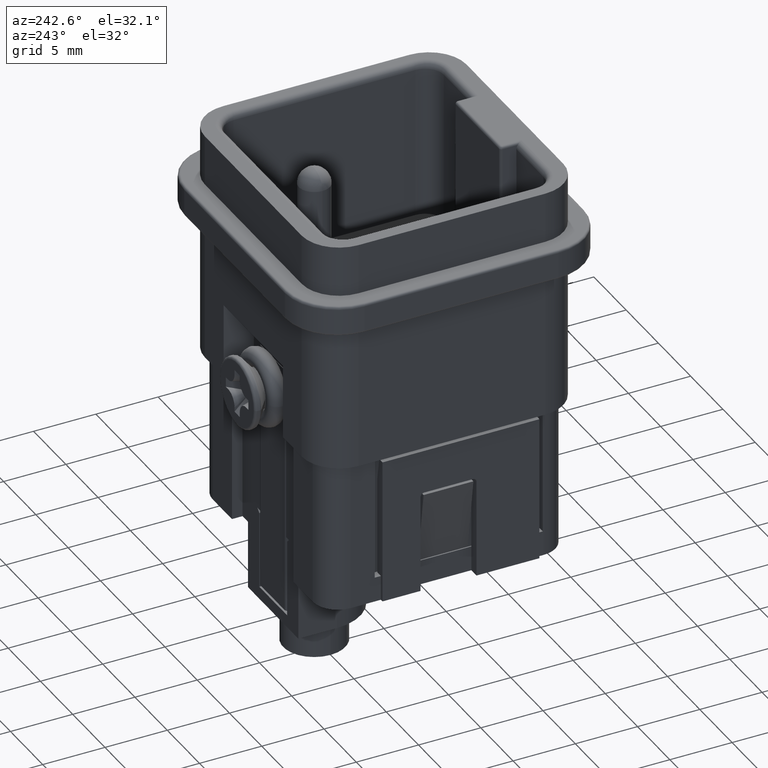
[diagram: clean part render]
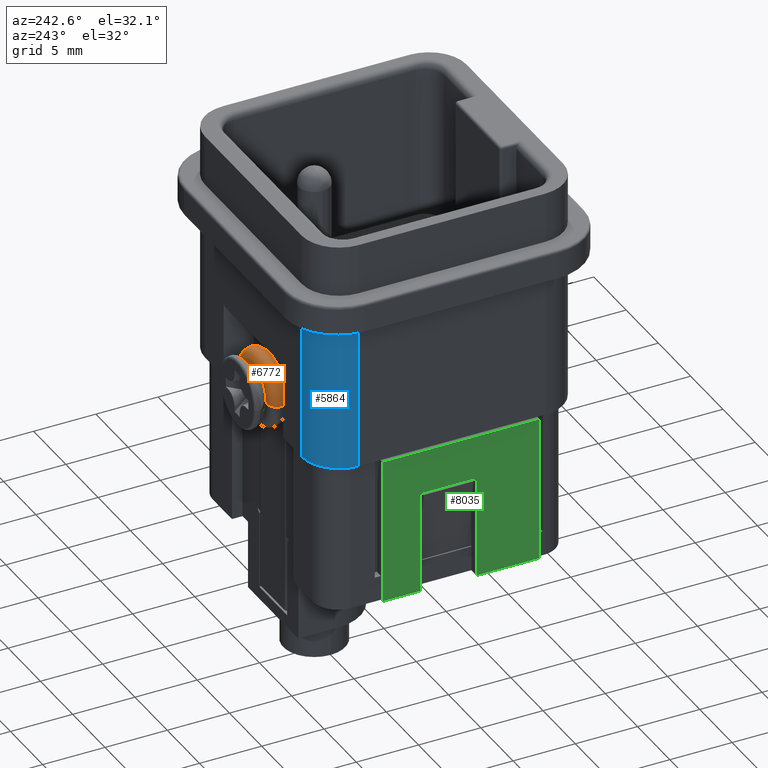
[diagram: same view with three faces highlighted in distinct colors, each labeled with its STEP entity id]
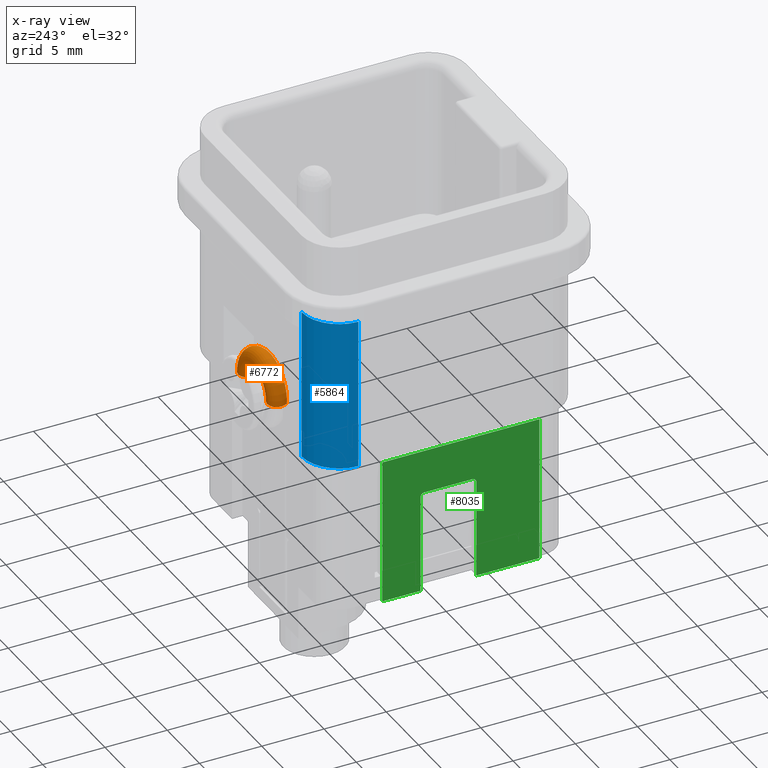
[diagram: x-ray of the same camera — body ghosted, the three highlighted faces saturated]
A machine part, auxiliary view with three faces highlighted in distinct colors.
The next image is the same camera in x-ray (body ghosted, the three faces saturated) — at least one of them is partly hidden behind the body in this view.
Their STEP definitions:

[orange] entity #6772 — the highlighted toroidal blend (fillet) surface has major radius 2.25 mm and minor (blend) radius 0.75 mm.
#1947=CARTESIAN_POINT('',(-2.250084244088E0,9.795776605353E0,1.169934339754E1));
#1948=DIRECTION('',(2.894756675E-4,0.E0,-9.999999581019E-1));
#1949=DIRECTION('',(2.214737048736E-4,-9.999999754747E-1,6.411125173095E-8));
#1950=AXIS2_PLACEMENT_3D('',#1947,#1948,#1949);
#1952=CARTESIAN_POINT('',(-1.547478388515E0,1.005822949748E1,1.169977489427E1));
#1953=CARTESIAN_POINT('',(-1.547478388515E0,1.005819065629E1,1.175022589988E1));
#1954=CARTESIAN_POINT('',(-1.542551207381E0,1.005818699263E1,1.185171827060E1));
#1955=CARTESIAN_POINT('',(-1.520075679993E0,1.005819380879E1,1.200310257552E1));
#1956=CARTESIAN_POINT('',(-1.482761366270E0,1.005820006607E1,1.215152305630E1));
#1957=CARTESIAN_POINT('',(-1.431339531177E0,1.005820906939E1,1.229463822817E1));
#1958=CARTESIAN_POINT('',(-1.366523877035E0,1.005821978443E1,1.243142818299E1));
#1959=CARTESIAN_POINT('',(-1.287991163209E0,1.005823250856E1,1.256229876305E1));
#1960=CARTESIAN_POINT('',(-1.196855126940E0,1.005824699029E1,1.268486734852E1));
#1961=CARTESIAN_POINT('',(-1.094617781010E0,1.005826301034E1,1.279734180716E1));
#1962=CARTESIAN_POINT('',(-9.822690381326E-1,1.005828041146E1,
1.289895070378E1));
#1963=CARTESIAN_POINT('',(-8.602487411196E-1,1.005829912683E1,
1.298933679535E1));
#1964=CARTESIAN_POINT('',(-7.293788100623E-1,1.005831902735E1,
1.306763199267E1));
#1965=CARTESIAN_POINT('',(-5.920349876496E-1,1.005833975171E1,
1.313242903262E1));
#1966=CARTESIAN_POINT('',(-4.491272430392E-1,1.005836116376E1,
1.318345153873E1));
#1967=CARTESIAN_POINT('',(-3.020764806768E-1,1.005838305084E1,
1.322023668595E1));
#1968=CARTESIAN_POINT('',(-1.516160589256E-1,1.005840530304E1,
1.324253103617E1));
#1969=CARTESIAN_POINT('',(8.336196846363E-6,1.005842758770E1,1.324995245559E1));
#1970=CARTESIAN_POINT('',(1.516205349535E-1,1.005844973279E1,1.324252966892E1));
#1971=CARTESIAN_POINT('',(3.020508651229E-1,1.005847156679E1,1.322024127387E1));
#1972=CARTESIAN_POINT('',(4.491114360668E-1,1.005849277271E1,1.318345715807E1));
#1973=CARTESIAN_POINT('',(5.920359292706E-1,1.005851324078E1,1.313242858156E1));
#1974=CARTESIAN_POINT('',(7.293642051366E-1,1.005853276188E1,1.306763919074E1));
#1975=CARTESIAN_POINT('',(8.602194465571E-1,1.005855120986E1,1.298935473841E1));
#1976=CARTESIAN_POINT('',(9.822091889210E-1,1.005856824935E1,1.289899956824E1));
#1977=CARTESIAN_POINT('',(1.094583345921E0,1.005858377188E1,1.279737671906E1));
#1978=CARTESIAN_POINT('',(1.196809829340E0,1.005859772745E1,1.268492113861E1));
#1979=CARTESIAN_POINT('',(1.287941286299E0,1.005860989627E1,1.256237137893E1));
#1980=CARTESIAN_POINT('',(1.366460163361E0,1.005862040201E1,1.243154471343E1));
#1981=CARTESIAN_POINT('',(1.431283995942E0,1.005862788004E1,1.229477229045E1));
#1982=CARTESIAN_POINT('',(1.482715762760E0,1.005863695334E1,1.215166818734E1));
#1983=CARTESIAN_POINT('',(1.520044621335E0,1.005863042756E1,1.200327155911E1));
#1984=CARTESIAN_POINT('',(1.542531768345E0,1.005867203320E1,1.185184618513E1));
#1985=CARTESIAN_POINT('',(1.547478419564E0,1.005857306960E1,1.175048530377E1));
#1986=CARTESIAN_POINT('',(1.547478419564E0,1.005858153260E1,1.169994886862E1));
#1988=CARTESIAN_POINT('',(2.249914794267E0,9.795776605353E0,1.169985371564E1));
#1989=DIRECTION('',(-6.266757964197E-5,0.E0,-9.999999980364E-1));
#1990=DIRECTION('',(-9.365701276860E-1,3.504802312276E-1,5.869258318256E-5));
#1991=AXIS2_PLACEMENT_3D('',#1988,#1989,#1990);
#1993=CARTESIAN_POINT('',(2.249914793989E0,9.795776605353E0,1.169984935299E1));
#1994=DIRECTION('',(-6.460653783072E-5,0.E0,-9.999999979130E-1));
#1995=DIRECTION('',(-2.214852722149E-4,9.999999754721E-1,1.430939628112E-8));
#1996=AXIS2_PLACEMENT_3D('',#1993,#1994,#1995);
#1998=CARTESIAN_POINT('',(2.249914793989E0,9.795776605353E0,1.169984935299E1));
#1999=DIRECTION('',(-6.460653783072E-5,0.E0,-9.999999979130E-1));
#2000=DIRECTION('',(-2.214737136907E-4,-9.999999754747E-1,1.430865022057E-8));
#2001=AXIS2_PLACEMENT_3D('',#1998,#1999,#2000);
#2003=CARTESIAN_POINT('',(1.547478419564E0,9.532971678284E0,1.169994886835E1));
#2004=CARTESIAN_POINT('',(1.547478419564E0,9.532980141331E0,1.175048530350E1));
#2005=CARTESIAN_POINT('',(1.542531768345E0,9.532881177401E0,1.185184618526E1));
#2006=CARTESIAN_POINT('',(1.520044621335E0,9.532922783174E0,1.200327155907E1));
#2007=CARTESIAN_POINT('',(1.482715762760E0,9.532916257362E0,1.215166818735E1));
#2008=CARTESIAN_POINT('',(1.431283995942E0,9.532925330671E0,1.229477229045E1));
#2009=CARTESIAN_POINT('',(1.366460163361E0,9.532932808699E0,1.243154471343E1));
#2010=CARTESIAN_POINT('',(1.287941286299E0,9.532943314440E0,1.256237137893E1));
#2011=CARTESIAN_POINT('',(1.196809829340E0,9.532955483255E0,1.268492113861E1));
#2012=CARTESIAN_POINT('',(1.094583345921E0,9.532969438824E0,1.279737671906E1));
#2013=CARTESIAN_POINT('',(9.822091889210E-1,9.532984961352E0,1.289899956824E1));
#2014=CARTESIAN_POINT('',(8.602194465571E-1,9.533002000849E0,1.298935473841E1));
#2015=CARTESIAN_POINT('',(7.293642051366E-1,9.533020448824E0,1.306763919074E1));
#2016=CARTESIAN_POINT('',(5.920359292706E-1,9.533039969930E0,1.313242858156E1));
#2017=CARTESIAN_POINT('',(4.491114360668E-1,9.533060437992E0,1.318345715807E1));
#2018=CARTESIAN_POINT('',(3.020508651229E-1,9.533081643918E0,1.322024127387E1));
#2019=CARTESIAN_POINT('',(1.516205349535E-1,9.533103477918E0,1.324252966892E1));
#2020=CARTESIAN_POINT('',(8.336196843886E-6,9.533125623004E0,1.324995245559E1));
#2021=CARTESIAN_POINT('',(-1.516160589256E-1,9.533147907671E0,
1.324253103617E1));
#2022=CARTESIAN_POINT('',(-3.020764806768E-1,9.533170159864E0,
1.322023668595E1));
#2023=CARTESIAN_POINT('',(-4.491272430392E-1,9.533192046946E0,
1.318345153873E1));
#2024=CARTESIAN_POINT('',(-5.920349876496E-1,9.533213458994E0,
1.313242903262E1));
#2025=CARTESIAN_POINT('',(-7.293788100623E-1,9.533234183354E0,
1.306763199267E1));
#2026=CARTESIAN_POINT('',(-8.602487411196E-1,9.533254083878E0,
1.298933679535E1));
#2027=CARTESIAN_POINT('',(-9.822690381326E-1,9.533272799248E0,
1.289895070378E1));
#2028=CARTESIAN_POINT('',(-1.094617781010E0,9.533290200363E0,1.279734180716E1));
#2029=CARTESIAN_POINT('',(-1.196855126940E0,9.533306220415E0,1.268486734852E1));
#2030=CARTESIAN_POINT('',(-1.287991163209E0,9.533320702142E0,1.256229876305E1));
#2031=CARTESIAN_POINT('',(-1.366523877035E0,9.533333426273E0,1.243142818299E1));
#2032=CARTESIAN_POINT('',(-1.431339531177E0,9.533344141320E0,1.229463822818E1));
#2033=CARTESIAN_POINT('',(-1.482761366270E0,9.533353144622E0,1.215152305628E1));
#2034=CARTESIAN_POINT('',(-1.520075679993E0,9.533359401956E0,1.200310257561E1));
#2035=CARTESIAN_POINT('',(-1.542551207381E0,9.533366217908E0,1.185171827025E1));
#2036=CARTESIAN_POINT('',(-1.547478388515E0,9.533362554773E0,1.175022590062E1));
#2037=CARTESIAN_POINT('',(-1.547478388515E0,9.533323713714E0,1.169977489501E1));
#2039=CARTESIAN_POINT('',(-1.547478388515E0,1.005822949748E1,1.169977489427E1));
#2072=CARTESIAN_POINT('',(1.547478419564E0,1.005858153260E1,1.169994886862E1));
#2074=CARTESIAN_POINT('',(-2.250032139668E0,9.795776605842E0,1.169932326998E1));
#2075=DIRECTION('',(-3.224234633220E-4,3.227963676043E-10,9.999999480216E-1));
#2076=DIRECTION('',(9.367500876444E-1,3.499988315351E-1,3.020301102470E-4));
#2077=AXIS2_PLACEMENT_3D('',#2074,#2075,#2076);
#2079=CARTESIAN_POINT('',(-2.250032145045E0,9.795776605842E0,1.169934014482E1));
#2080=DIRECTION('',(-3.149234864445E-4,3.227958449379E-10,9.999999504116E-1));
#2081=DIRECTION('',(-4.106760508872E-5,-9.999999991567E-1,-1.261035850948E-8));
#2082=AXIS2_PLACEMENT_3D('',#2079,#2080,#2081);
#2084=CARTESIAN_POINT('',(-1.547478388515E0,9.533323713714E0,1.169977489501E1));
#2117=CARTESIAN_POINT('',(1.547478419564E0,9.532971678284E0,1.169994886835E1));
#4108=VERTEX_POINT('',#2084);
#4109=VERTEX_POINT('',#2117);
#4110=VERTEX_POINT('',#2039);
#4111=VERTEX_POINT('',#2072);
#4112=CARTESIAN_POINT('',(2.249748678232E0,1.054578596226E1,1.169985372605E1));
#4113=VERTEX_POINT('',#4112);
#4114=CARTESIAN_POINT('',(2.249748686628E0,9.045767248440E0,1.169984936372E1));
#4115=VERTEX_POINT('',#4114);
#4116=CARTESIAN_POINT('',(-2.250062931046E0,1.054576723042E1,1.169932325981E1));
#4117=VERTEX_POINT('',#4116);
#4118=CARTESIAN_POINT('',(-2.250062945364E0,9.045785981266E0,1.169934013536E1));
#4119=VERTEX_POINT('',#4118);
#6750=CARTESIAN_POINT('',(-8.476983676408E-5,9.795776605353E0,
1.169999471767E1));
#6751=DIRECTION('',(0.E0,-1.E0,0.E0));
#6752=DIRECTION('',(-9.999999581019E-1,0.E0,-2.894756675002E-4));
#6753=AXIS2_PLACEMENT_3D('',#6750,#6751,#6752);
#6754=TOROIDAL_SURFACE('',#6753,2.249999568522E0,7.500093753072E-1);
#6756=ORIENTED_EDGE('',*,*,#6755,.T.);
#6758=ORIENTED_EDGE('',*,*,#6757,.F.);
#6760=ORIENTED_EDGE('',*,*,#6759,.T.);
#6762=ORIENTED_EDGE('',*,*,#6761,.T.);
#6764=ORIENTED_EDGE('',*,*,#6763,.T.);
#6766=ORIENTED_EDGE('',*,*,#6765,.T.);
#6767=ORIENTED_EDGE('',*,*,#6744,.T.);
#6769=ORIENTED_EDGE('',*,*,#6768,.F.);
#6770=EDGE_LOOP('',(#6756,#6758,#6760,#6762,#6764,#6766,#6767,#6769));
#6771=FACE_OUTER_BOUND('',#6770,.F.);
#6772=ADVANCED_FACE('',(#6771),#6754,.T.);
#1951=CIRCLE('',#1950,7.500093753072E-1);
#1987=B_SPLINE_CURVE_WITH_KNOTS('',3,(#1952,#1953,#1954,#1955,#1956,#1957,#1958,
#1959,#1960,#1961,#1962,#1963,#1964,#1965,#1966,#1967,#1968,#1969,#1970,#1971,
#1972,#1973,#1974,#1975,#1976,#1977,#1978,#1979,#1980,#1981,#1982,#1983,#1984,
#1985,#1986),.UNSPECIFIED.,.F.,.F.,(4,1,1,1,1,1,1,1,1,1,1,1,1,1,1,1,1,1,1,1,1,1,
1,1,1,1,1,1,1,1,1,1,4),(0.E0,3.125E-2,6.25E-2,9.375E-2,1.25E-1,1.5625E-1,
1.875E-1,2.1875E-1,2.5E-1,2.8125E-1,3.125E-1,3.4375E-1,3.75E-1,4.0625E-1,
4.375E-1,4.6875E-1,5.E-1,5.3125E-1,5.625E-1,5.9375E-1,6.25E-1,6.5625E-1,
6.875E-1,7.1875E-1,7.5E-1,7.8125E-1,8.125E-1,8.4375E-1,8.75E-1,9.0625E-1,
9.375E-1,9.6875E-1,1.E0),.UNSPECIFIED.);
#1992=CIRCLE('',#1991,7.500093753072E-1);
#1997=CIRCLE('',#1996,7.500093753072E-1);
#2002=CIRCLE('',#2001,7.500093753072E-1);
#2038=B_SPLINE_CURVE_WITH_KNOTS('',3,(#2003,#2004,#2005,#2006,#2007,#2008,#2009,
#2010,#2011,#2012,#2013,#2014,#2015,#2016,#2017,#2018,#2019,#2020,#2021,#2022,
#2023,#2024,#2025,#2026,#2027,#2028,#2029,#2030,#2031,#2032,#2033,#2034,#2035,
#2036,#2037),.UNSPECIFIED.,.F.,.F.,(4,1,1,1,1,1,1,1,1,1,1,1,1,1,1,1,1,1,1,1,1,1,
1,1,1,1,1,1,1,1,1,1,4),(0.E0,3.125E-2,6.25E-2,9.375E-2,1.25E-1,1.5625E-1,
1.875E-1,2.1875E-1,2.5E-1,2.8125E-1,3.125E-1,3.4375E-1,3.75E-1,4.0625E-1,
4.375E-1,4.6875E-1,5.E-1,5.3125E-1,5.625E-1,5.9375E-1,6.25E-1,6.5625E-1,
6.875E-1,7.1875E-1,7.5E-1,7.8125E-1,8.125E-1,8.4375E-1,8.75E-1,9.0625E-1,
9.375E-1,9.6875E-1,1.E0),.UNSPECIFIED.);
#2078=CIRCLE('',#2077,7.499906252085E-1);
#2083=CIRCLE('',#2082,7.499906252085E-1);
#6744=EDGE_CURVE('',#4109,#4108,#2038,.T.);
#6755=EDGE_CURVE('',#4119,#4117,#1951,.T.);
#6757=EDGE_CURVE('',#4110,#4117,#2078,.T.);
#6759=EDGE_CURVE('',#4110,#4111,#1987,.T.);
#6761=EDGE_CURVE('',#4111,#4113,#1992,.T.);
#6763=EDGE_CURVE('',#4113,#4115,#1997,.T.);
#6765=EDGE_CURVE('',#4115,#4109,#2002,.T.);
#6768=EDGE_CURVE('',#4119,#4108,#2083,.T.);

[blue] entity #5864 — the highlighted cylindrical surface (partial cylindrical patch) has radius 3 mm, axis along (0, 0, -1).
#107=CARTESIAN_POINT('',(-7.5E0,7.5E0,1.02E1));
#108=DIRECTION('',(0.E0,0.E0,1.E0));
#109=DIRECTION('',(0.E0,1.E0,0.E0));
#110=AXIS2_PLACEMENT_3D('',#107,#108,#109);
#1202=CARTESIAN_POINT('',(-7.5E0,7.5E0,2.235E1));
#1203=DIRECTION('',(0.E0,0.E0,-1.E0));
#1204=DIRECTION('',(-1.E0,0.E0,0.E0));
#1205=AXIS2_PLACEMENT_3D('',#1202,#1203,#1204);
#1207=DIRECTION('',(0.E0,0.E0,-1.E0));
#1208=VECTOR('',#1207,1.215E1);
#1209=CARTESIAN_POINT('',(-1.05E1,7.5E0,2.235E1));
#1210=LINE('',#1209,#1208);
#1211=DIRECTION('',(0.E0,0.E0,1.E0));
#1212=VECTOR('',#1211,1.215E1);
#1213=CARTESIAN_POINT('',(-7.5E0,1.05E1,1.02E1));
#1214=LINE('',#1213,#1212);
#3409=CARTESIAN_POINT('',(-7.5E0,1.05E1,1.02E1));
#3411=VERTEX_POINT('',#3409);
#3413=CARTESIAN_POINT('',(-1.05E1,7.5E0,1.02E1));
#3414=VERTEX_POINT('',#3413);
#4228=CARTESIAN_POINT('',(-7.5E0,1.05E1,2.235E1));
#4230=VERTEX_POINT('',#4228);
#4247=CARTESIAN_POINT('',(-1.05E1,7.5E0,2.235E1));
#4248=VERTEX_POINT('',#4247);
#5853=CARTESIAN_POINT('',(-7.5E0,7.5E0,2.88E1));
#5854=DIRECTION('',(0.E0,0.E0,-1.E0));
#5855=DIRECTION('',(1.E0,0.E0,0.E0));
#5856=AXIS2_PLACEMENT_3D('',#5853,#5854,#5855);
#5857=CYLINDRICAL_SURFACE('',#5856,3.E0);
#5858=ORIENTED_EDGE('',*,*,#4506,.F.);
#5859=ORIENTED_EDGE('',*,*,#5848,.T.);
#5860=ORIENTED_EDGE('',*,*,#4385,.F.);
#5861=ORIENTED_EDGE('',*,*,#4455,.T.);
#5862=EDGE_LOOP('',(#5858,#5859,#5860,#5861));
#5863=FACE_OUTER_BOUND('',#5862,.F.);
#5864=ADVANCED_FACE('',(#5863),#5857,.T.);
#111=CIRCLE('',#110,3.E0);
#1206=CIRCLE('',#1205,3.E0);
#4385=EDGE_CURVE('',#3411,#3414,#111,.T.);
#4455=EDGE_CURVE('',#3411,#4230,#1214,.T.);
#4506=EDGE_CURVE('',#4248,#4230,#1206,.T.);
#5848=EDGE_CURVE('',#4248,#3414,#1210,.T.);

[green] entity #8035 — the highlighted planar face has unit normal (1, 0, 0).
#2979=DIRECTION('',(0.E0,0.E0,-1.E0));
#2980=VECTOR('',#2979,1.17E1);
#2981=CARTESIAN_POINT('',(-1.E1,5.3E0,9.6E0));
#2982=LINE('',#2981,#2980);
#3055=DIRECTION('',(0.E0,1.E0,0.E0));
#3056=VECTOR('',#3055,3.9E0);
#3057=CARTESIAN_POINT('',(-1.E1,-1.95E0,6.1E0));
#3058=LINE('',#3057,#3056);
#3059=CARTESIAN_POINT('',(-1.E1,1.95E0,5.8E0));
#3060=DIRECTION('',(-1.E0,0.E0,0.E0));
#3061=DIRECTION('',(0.E0,0.E0,1.E0));
#3062=AXIS2_PLACEMENT_3D('',#3059,#3060,#3061);
#3064=DIRECTION('',(0.E0,0.E0,-1.E0));
#3065=VECTOR('',#3064,7.9E0);
#3066=CARTESIAN_POINT('',(-1.E1,2.25E0,5.8E0));
#3067=LINE('',#3066,#3065);
#3068=DIRECTION('',(0.E0,1.E0,0.E0));
#3069=VECTOR('',#3068,3.05E0);
#3070=CARTESIAN_POINT('',(-1.E1,2.25E0,-2.1E0));
#3071=LINE('',#3070,#3069);
#3072=DIRECTION('',(0.E0,-1.E0,0.E0));
#3073=VECTOR('',#3072,1.26E1);
#3074=CARTESIAN_POINT('',(-1.E1,5.3E0,9.6E0));
#3075=LINE('',#3074,#3073);
#3076=DIRECTION('',(0.E0,0.E0,-1.E0));
#3077=VECTOR('',#3076,1.17E1);
#3078=CARTESIAN_POINT('',(-1.E1,-7.3E0,9.6E0));
#3079=LINE('',#3078,#3077);
#3080=DIRECTION('',(0.E0,1.E0,0.E0));
#3081=VECTOR('',#3080,5.05E0);
#3082=CARTESIAN_POINT('',(-1.E1,-7.3E0,-2.1E0));
#3083=LINE('',#3082,#3081);
#3084=DIRECTION('',(0.E0,0.E0,1.E0));
#3085=VECTOR('',#3084,7.9E0);
#3086=CARTESIAN_POINT('',(-1.E1,-2.25E0,-2.1E0));
#3087=LINE('',#3086,#3085);
#3088=CARTESIAN_POINT('',(-1.E1,-1.95E0,5.8E0));
#3089=DIRECTION('',(-1.E0,0.E0,0.E0));
#3090=DIRECTION('',(0.E0,-1.E0,0.E0));
#3091=AXIS2_PLACEMENT_3D('',#3088,#3089,#3090);
#3672=CARTESIAN_POINT('',(-1.E1,5.3E0,-2.1E0));
#3673=VERTEX_POINT('',#3672);
#3674=CARTESIAN_POINT('',(-1.E1,2.25E0,-2.1E0));
#3675=VERTEX_POINT('',#3674);
#3680=CARTESIAN_POINT('',(-1.E1,-2.25E0,-2.1E0));
#3681=VERTEX_POINT('',#3680);
#3682=CARTESIAN_POINT('',(-1.E1,-7.3E0,-2.1E0));
#3683=VERTEX_POINT('',#3682);
#3844=CARTESIAN_POINT('',(-1.E1,5.3E0,9.6E0));
#3845=VERTEX_POINT('',#3844);
#3854=CARTESIAN_POINT('',(-1.E1,-7.3E0,9.6E0));
#3855=VERTEX_POINT('',#3854);
#3864=CARTESIAN_POINT('',(-1.E1,2.25E0,5.8E0));
#3865=VERTEX_POINT('',#3864);
#3866=CARTESIAN_POINT('',(-1.E1,-2.25E0,5.8E0));
#3867=VERTEX_POINT('',#3866);
#3868=CARTESIAN_POINT('',(-1.E1,-1.95E0,6.1E0));
#3869=CARTESIAN_POINT('',(-1.E1,1.95E0,6.1E0));
#3870=VERTEX_POINT('',#3868);
#3871=VERTEX_POINT('',#3869);
#8014=CARTESIAN_POINT('',(-1.E1,5.3E0,9.6E0));
#8015=DIRECTION('',(1.E0,0.E0,0.E0));
#8016=DIRECTION('',(0.E0,1.E0,0.E0));
#8017=AXIS2_PLACEMENT_3D('',#8014,#8015,#8016);
#8018=PLANE('',#8017);
#8020=ORIENTED_EDGE('',*,*,#8019,.T.);
#8022=ORIENTED_EDGE('',*,*,#8021,.T.);
#8023=ORIENTED_EDGE('',*,*,#7979,.T.);
#8024=ORIENTED_EDGE('',*,*,#6418,.T.);
#8025=ORIENTED_EDGE('',*,*,#7899,.F.);
#8027=ORIENTED_EDGE('',*,*,#8026,.T.);
#8028=ORIENTED_EDGE('',*,*,#7936,.T.);
#8029=ORIENTED_EDGE('',*,*,#6426,.T.);
#8030=ORIENTED_EDGE('',*,*,#8004,.T.);
#8032=ORIENTED_EDGE('',*,*,#8031,.T.);
#8033=EDGE_LOOP('',(#8020,#8022,#8023,#8024,#8025,#8027,#8028,#8029,#8030,
#8032));
#8034=FACE_OUTER_BOUND('',#8033,.F.);
#8035=ADVANCED_FACE('',(#8034),#8018,.F.);
#3063=CIRCLE('',#3062,3.E-1);
#3092=CIRCLE('',#3091,3.E-1);
#6418=EDGE_CURVE('',#3675,#3673,#3071,.T.);
#6426=EDGE_CURVE('',#3683,#3681,#3083,.T.);
#7899=EDGE_CURVE('',#3845,#3673,#2982,.T.);
#7936=EDGE_CURVE('',#3855,#3683,#3079,.T.);
#7979=EDGE_CURVE('',#3865,#3675,#3067,.T.);
#8004=EDGE_CURVE('',#3681,#3867,#3087,.T.);
#8019=EDGE_CURVE('',#3870,#3871,#3058,.T.);
#8021=EDGE_CURVE('',#3871,#3865,#3063,.T.);
#8026=EDGE_CURVE('',#3845,#3855,#3075,.T.);
#8031=EDGE_CURVE('',#3867,#3870,#3092,.T.);